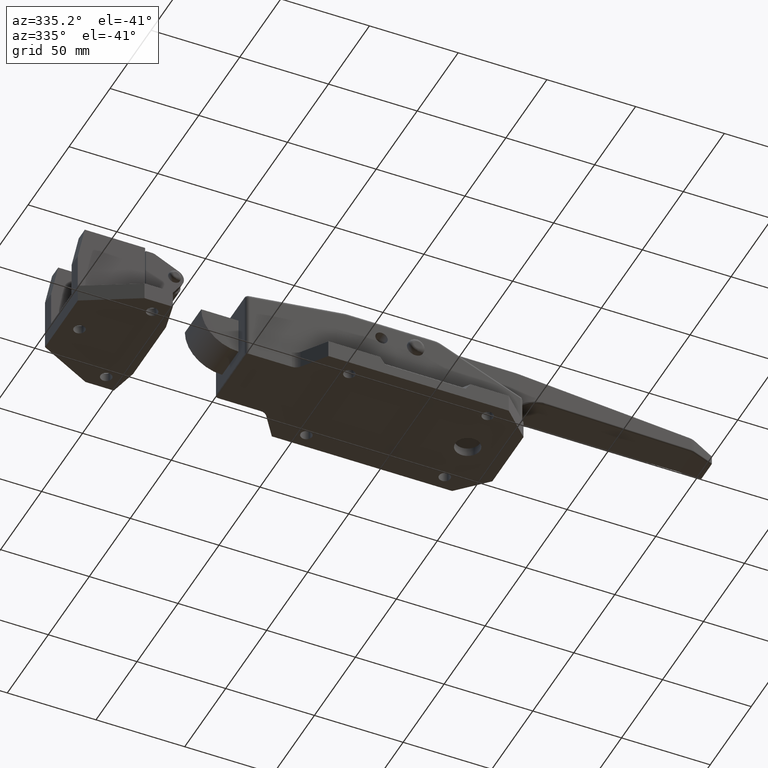
[diagram: clean part render]
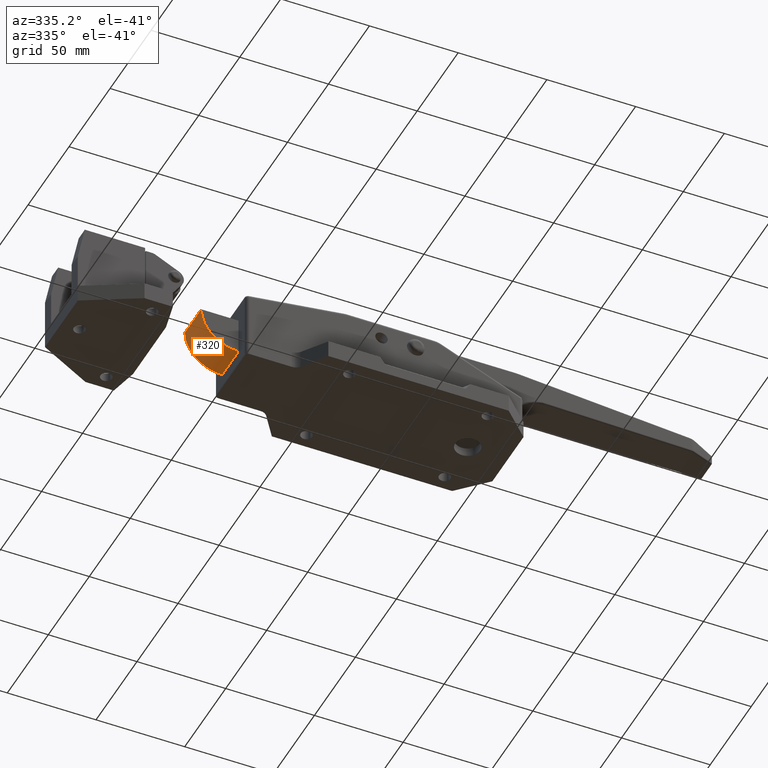
[diagram: same view with one face highlighted and labeled with its STEP entity id]
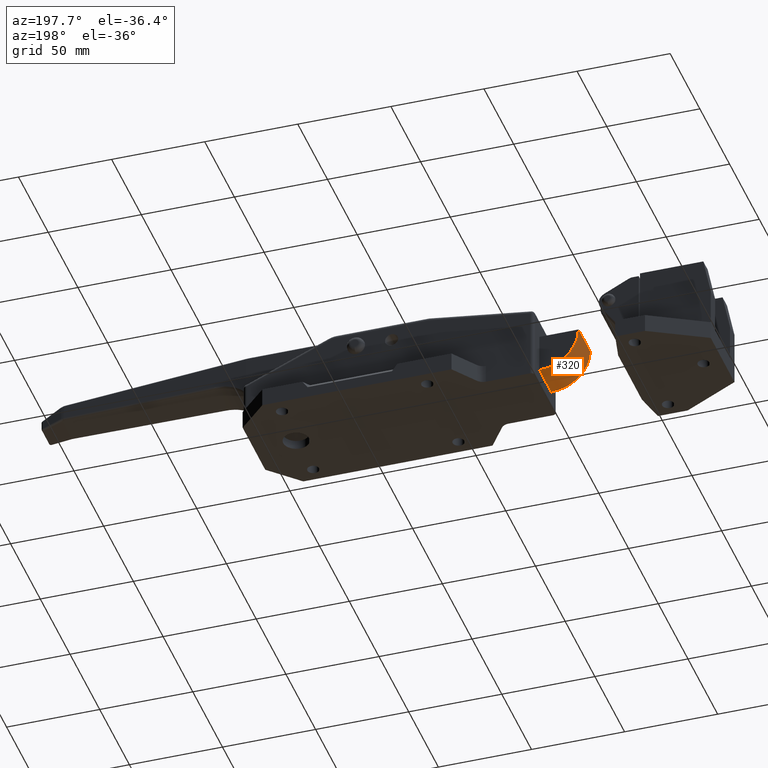
[diagram: same view with one face highlighted and labeled with its STEP entity id]
A machine part, auxiliary view. The second image highlights one B-rep face of the part: STEP entity #320.
A second angle (auxiliary view) of the same face is appended — the face is thin or edge-on in the first view.
In plain terms, the highlighted cylindrical surface (partial cylindrical patch) has radius 21 mm, axis along (-0, -1, -0).
Its self-contained STEP definition (entity closure, byte-faithful):
#88 = CARTESIAN_POINT ( 'NONE',  ( -78.25000000000004300, -9.999999999999998200, 8.000000000000007100 ) ) ;
#122 = VERTEX_POINT ( 'NONE', #88 ) ;
#320 = ADVANCED_FACE ( 'NONE', ( #6749 ), #3635, .T. ) ;
#413 = ORIENTED_EDGE ( 'NONE', *, *, #2309, .F. ) ;
#456 = DIRECTION ( 'NONE',  ( 0.0000000000000000000, 0.0000000000000000000, -1.000000000000000000 ) ) ;
#709 = CARTESIAN_POINT ( 'NONE',  ( -99.25000000000000000, 10.00000000000000000, 28.99999999999991500 ) ) ;
#763 = DIRECTION ( 'NONE',  ( 0.0000000000000000000, 0.0000000000000000000, -1.000000000000000000 ) ) ;
#812 = DIRECTION ( 'NONE',  ( -0.0000000000000000000, -1.000000000000000000, -0.0000000000000000000 ) ) ;
#857 = VERTEX_POINT ( 'NONE', #4238 ) ;
#1646 = VECTOR ( 'NONE', #3561, 1000.000000000000000 ) ;
#1769 = CARTESIAN_POINT ( 'NONE',  ( -78.25000000000004300, 10.00000000000000000, 28.99999999999991500 ) ) ;
#1776 = DIRECTION ( 'NONE',  ( -0.0000000000000000000, 1.000000000000000000, -0.0000000000000000000 ) ) ;
#1779 = DIRECTION ( 'NONE',  ( 0.0000000000000000000, 0.0000000000000000000, -1.000000000000000000 ) ) ;
#1802 = VECTOR ( 'NONE', #5211, 1000.000000000000000 ) ;
#1977 = CARTESIAN_POINT ( 'NONE',  ( -78.24999999999998600, 10.00000000000000000, 8.000000000000007100 ) ) ;
#2309 = EDGE_CURVE ( 'NONE', #3257, #5180, #5298, .T. ) ;
#3033 = DIRECTION ( 'NONE',  ( -0.0000000000000000000, 1.000000000000000000, -0.0000000000000000000 ) ) ;
#3056 = CARTESIAN_POINT ( 'NONE',  ( -78.25000000000004300, -10.00000000000000000, 28.99999999999991500 ) ) ;
#3257 = VERTEX_POINT ( 'NONE', #1977 ) ;
#3374 = CARTESIAN_POINT ( 'NONE',  ( -78.25000000000004300, 10.00000000000000000, 28.99999999999991500 ) ) ;
#3561 = DIRECTION ( 'NONE',  ( -0.0000000000000000000, -1.000000000000000000, -0.0000000000000000000 ) ) ;
#3635 = CYLINDRICAL_SURFACE ( 'NONE', #8090, 21.00000000000000400 ) ;
#4104 = CARTESIAN_POINT ( 'NONE',  ( -99.25000000000000000, 10.00000000000000000, 28.99999999999991500 ) ) ;
#4238 = CARTESIAN_POINT ( 'NONE',  ( -99.25000000000000000, -10.00000000000000000, 28.99999999999991500 ) ) ;
#4391 = LINE ( 'NONE', #709, #1646 ) ;
#4523 = CIRCLE ( 'NONE', #7895, 21.00000000000000400 ) ;
#4897 = AXIS2_PLACEMENT_3D ( 'NONE', #1769, #1776, #1779 ) ;
#4907 = ORIENTED_EDGE ( 'NONE', *, *, #5687, .T. ) ;
#5180 = VERTEX_POINT ( 'NONE', #4104 ) ;
#5211 = DIRECTION ( 'NONE',  ( -0.0000000000000000000, -1.000000000000000000, -0.0000000000000000000 ) ) ;
#5298 = CIRCLE ( 'NONE', #4897, 21.00000000000000400 ) ;
#5516 = ORIENTED_EDGE ( 'NONE', *, *, #6154, .T. ) ;
#5649 = CARTESIAN_POINT ( 'NONE',  ( -78.24999999999998600, 10.00000000000000000, 8.000000000000007100 ) ) ;
#5687 = EDGE_CURVE ( 'NONE', #122, #857, #4523, .T. ) ;
#6154 = EDGE_CURVE ( 'NONE', #3257, #122, #6253, .T. ) ;
#6253 = LINE ( 'NONE', #5649, #1802 ) ;
#6749 = FACE_OUTER_BOUND ( 'NONE', #7455, .T. ) ;
#7412 = ORIENTED_EDGE ( 'NONE', *, *, #8374, .F. ) ;
#7455 = EDGE_LOOP ( 'NONE', ( #4907, #7412, #413, #5516 ) ) ;
#7895 = AXIS2_PLACEMENT_3D ( 'NONE', #3056, #3033, #456 ) ;
#8090 = AXIS2_PLACEMENT_3D ( 'NONE', #3374, #812, #763 ) ;
#8374 = EDGE_CURVE ( 'NONE', #5180, #857, #4391, .T. ) ;